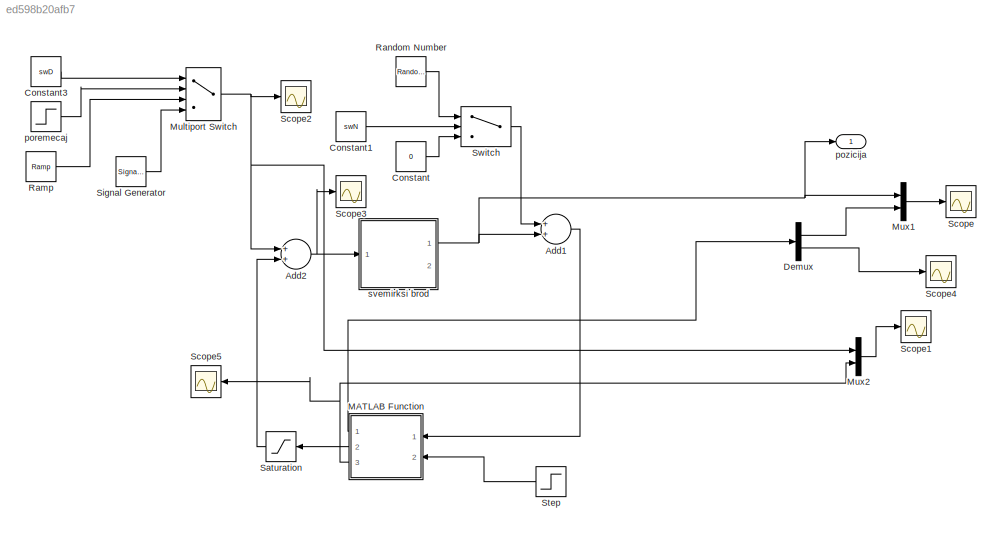
MODEL slx_ed598b20afb7
KIND model
BLOCK [Sum] Add1
  InputSameDT = off
  OutDataTypeStr = Inherit: Inherit via internal rule
  Ports = [2, 1]
  SaturateOnIntegerOverflow = off
BLOCK [Sum] Add2
  InputSameDT = off
  OutDataTypeStr = Inherit: Inherit via internal rule
  Ports = [2, 1]
  SaturateOnIntegerOverflow = off
BLOCK [Constant] Constant
  Value = 0
BLOCK [Constant] Constant1
  Value = swN
BLOCK [Constant] Constant3
  Value = swD
BLOCK [Demux] Demux
  DisplayOption = bar
  Outputs = 2
  Ports = [1, 2]
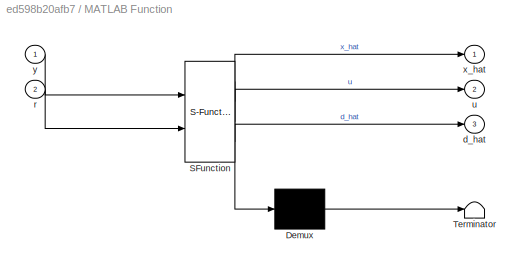
BLOCK [SubSystem] MATLAB Function
  ErrorFcn = Stateflow.Translate.translate
  PermitHierarchicalResolution = ParametersOnly
  Ports = [2, 3]
  RequestExecContextInheritance = off
  SFBlockType = MATLAB Function
  TreatAsAtomicUnit = on
BLOCK [Demux] MATLAB Function/ Demux 
  Outputs = 1
  Ports = [1, 1]
BLOCK [S-Function] MATLAB Function/ SFunction 
  EnableBusSupport = on
  FunctionName = sf_sfun
  Parameters = A,Aw,B,C,Cw,L,Lw,T,k,kr
  PortCounts = [2 4]
  Ports = [2, 4]
  SFunctionDeploymentMode = off
  Tag = Stateflow S-Function homework4_1_version2013b 2
BLOCK [Terminator] MATLAB Function/ Terminator 
BLOCK [Outport] MATLAB Function/d_hat
  IconDisplay = Port number
  Port = 3
BLOCK [Inport] MATLAB Function/r
  IconDisplay = Port number
  Port = 2
BLOCK [Outport] MATLAB Function/u
  IconDisplay = Port number
  Port = 2
BLOCK [Outport] MATLAB Function/x_hat
  IconDisplay = Port number
BLOCK [Inport] MATLAB Function/y
  IconDisplay = Port number
BLOCK [MultiPortSwitch] Multiport Switch
  InputSameDT = off
  Ports = [4, 1]
  SaturateOnIntegerOverflow = off
BLOCK [Mux] Mux1
  DisplayOption = bar
  Inputs = 2
  Ports = [2, 1]
BLOCK [Mux] Mux2
  DisplayOption = bar
  Inputs = 2
  Ports = [2, 1]
BLOCK [Reference] Ramp  REF=simulink/Sources/Ramp
  Ports = [0, 1]
  SourceBlock = simulink/Sources/Ramp
  SourceType = Ramp
  VectorParams1D = on
  X0 = 0
  slope = 1
  start = 0
BLOCK [RandomNumber] Random Number
  Variance = 0.01
BLOCK [Saturate] Saturation
  InputPortMap = u0
  LowerLimit = -1
  Ports = [1, 1]
  UpperLimit = 1
BLOCK [Scope] Scope
  DataFormat = StructureWithTime
  Decimation = 1
  Floating = off
  Grid = on
  LimitDataPoints = off
  MaxDataPoints = 5000
  NumInputPorts = 1
  Ports = [1]
  SampleInput = off
  SampleTime = -1
  SaveName = ScopeData
  SaveToWorkspace = off
  ShowLegends = off
  TickLabels = OneTimeTick
  TimeRange = auto
  YMax = 119.02366
  YMin = -13.22485
  ZoomMode = on
BLOCK [Scope] Scope1
  DataFormat = StructureWithTime
  Decimation = 1
  Floating = off
  Grid = on
  LimitDataPoints = off
  MaxDataPoints = 5000
  NumInputPorts = 1
  Ports = [1]
  SampleInput = off
  SampleTime = -1
  SaveName = ScopeData1
  SaveToWorkspace = off
  ShowLegends = off
  TickLabels = OneTimeTick
  TimeRange = auto
  YMax = 3.37704
  YMin = -0.37523
  ZoomMode = on
BLOCK [Scope] Scope2
  DataFormat = StructureWithTime
  Decimation = 1
  Floating = off
  Grid = on
  LimitDataPoints = off
  MaxDataPoints = 5000
  NumInputPorts = 1
  Ports = [1]
  SampleInput = off
  SampleTime = -1
  SaveName = ScopeData2
  SaveToWorkspace = off
  ShowLegends = off
  TickLabels = OneTimeTick
  TimeRange = auto
  YMax = 2.5
  YMin = -2.5
  ZoomMode = on
BLOCK [Scope] Scope3
  DataFormat = StructureWithTime
  Decimation = 1
  Floating = off
  Grid = on
  LimitDataPoints = off
  MaxDataPoints = 5000
  NumInputPorts = 1
  Ports = [1]
  SampleInput = off
  SampleTime = -1
  SaveName = ScopeData3
  SaveToWorkspace = off
  ShowLegends = off
  TickLabels = OneTimeTick
  TimeRange = auto
  YMax = 0.0639
  YMin = -0.04033
  ZoomMode = on
BLOCK [Scope] Scope4
  DataFormat = StructureWithTime
  Decimation = 1
  Floating = off
  Grid = on
  LimitDataPoints = off
  MaxDataPoints = 5000
  NumInputPorts = 1
  Ports = [1]
  SampleInput = off
  SampleTime = -1
  SaveName = ScopeData1
  SaveToWorkspace = off
  ShowLegends = off
  TickLabels = OneTimeTick
  TimeRange = auto
  YMax = 41.70109
  YMin = -6.97309
  ZoomMode = on
BLOCK [Scope] Scope5
  DataFormat = StructureWithTime
  Decimation = 1
  Floating = off
  Grid = on
  LimitDataPoints = off
  MaxDataPoints = 5000
  NumInputPorts = 1
  Ports = [1]
  SampleInput = off
  SampleTime = -1
  SaveName = ScopeData2
  SaveToWorkspace = off
  ShowLegends = off
  TickLabels = OneTimeTick
  TimeRange = auto
  YMax = 0.11267
  YMin = -0.01252
  ZoomMode = on
BLOCK [SignalGenerator] Signal Generator
  Amplitude = 2
  Frequency = omega
  Ports = [0, 1]
  Units = rad/sec
BLOCK [Step] Step
  After = 100
  SampleTime = 0
BLOCK [Switch] Switch
  Criteria = u2 > Threshold
  InputSameDT = off
  SaturateOnIntegerOverflow = off
  Threshold = 0.5
BLOCK [Step] poremecaj
  After = 0.1
  SampleTime = 0
  Time = 20
BLOCK [Outport] pozicija
  IconDisplay = Port number
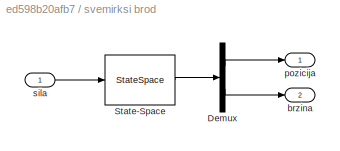
BLOCK [SubSystem] svemirksi brod
  Ports = [1, 2]
  RequestExecContextInheritance = off
BLOCK [Demux] svemirksi brod/Demux
  DisplayOption = bar
  Outputs = 2
  Ports = [1, 2]
BLOCK [StateSpace] svemirksi brod/State-Space
  A = [0 1;0 -b/m]
  B = [0;1/m]
  C = [1 0; 0 1]
  D = [0;0]
  Ports = [1, 1]
  X0 = [0;0]
BLOCK [Outport] svemirksi brod/brzina
  IconDisplay = Port number
  Port = 2
BLOCK [Outport] svemirksi brod/pozicija
  IconDisplay = Port number
BLOCK [Inport] svemirksi brod/sila
  IconDisplay = Port number
LINE Add1:1 -> MATLAB Function:1
NET Add2:1 -> Scope3:1, svemirksi brod:1
LINE Constant1:1 -> Switch:2
LINE Constant3:1 -> Multiport Switch:1
LINE Constant:1 -> Switch:3
LINE Demux:1 -> Mux1:2
LINE Demux:2 -> Scope4:1
LINE MATLAB Function:1 -> Demux:1
LINE MATLAB Function:2 -> Saturation:1
NET MATLAB Function:3 -> Mux2:2, Scope5:1
NET Multiport Switch:1 -> Add2:1, Mux2:1, Scope2:1
LINE Mux1:1 -> Scope:1
LINE Mux2:1 -> Scope1:1
LINE Ramp:1 -> Multiport Switch:3
LINE Random Number:1 -> Switch:1
LINE Saturation:1 -> Add2:2
LINE Signal Generator:1 -> Multiport Switch:4
LINE Step:1 -> MATLAB Function:2
LINE Switch:1 -> Add1:1
LINE poremecaj:1 -> Multiport Switch:2
LINE svemirksi brod/Demux:1 -> svemirksi brod/pozicija:1
LINE svemirksi brod/Demux:2 -> svemirksi brod/brzina:1
LINE svemirksi brod/State-Space:1 -> svemirksi brod/Demux:1
LINE svemirksi brod/sila:1 -> svemirksi brod/State-Space:1
NET svemirksi brod:1 -> Add1:2, Mux1:1, pozicija:1
note: NET lines group one-source signal fan-out (src -> all destinations, sorted); 1:1 wires keep LINE
